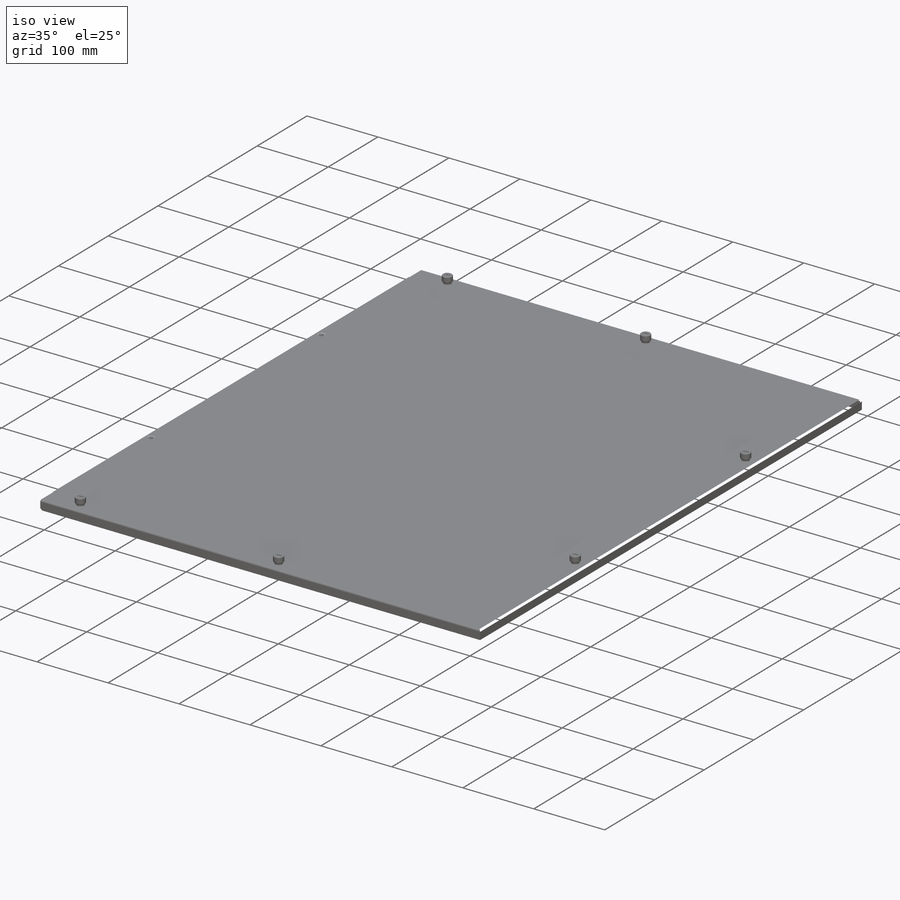
[diagram: iso view]
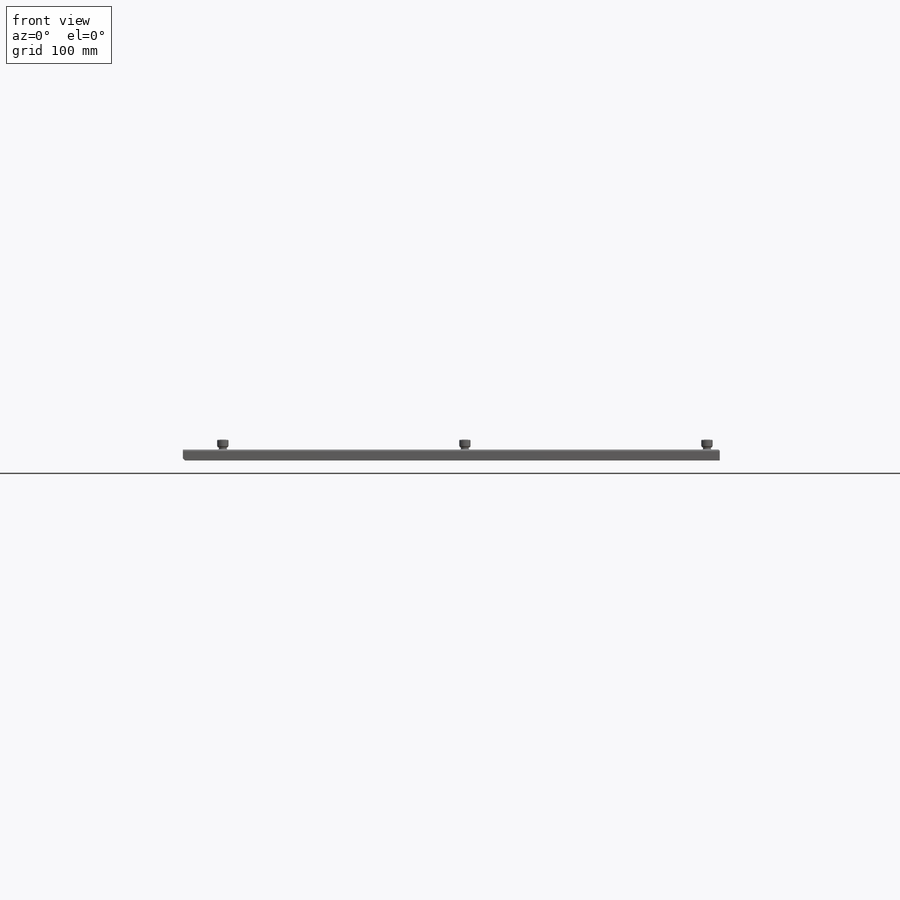
[diagram: front view]
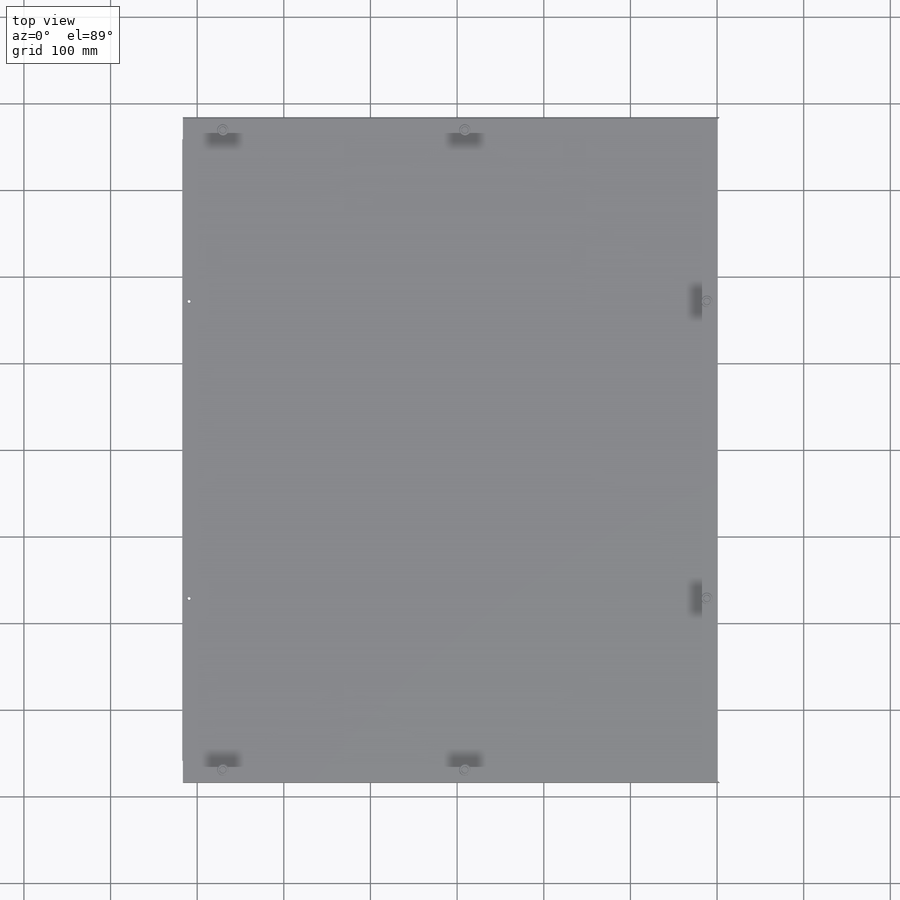
[diagram: top view]
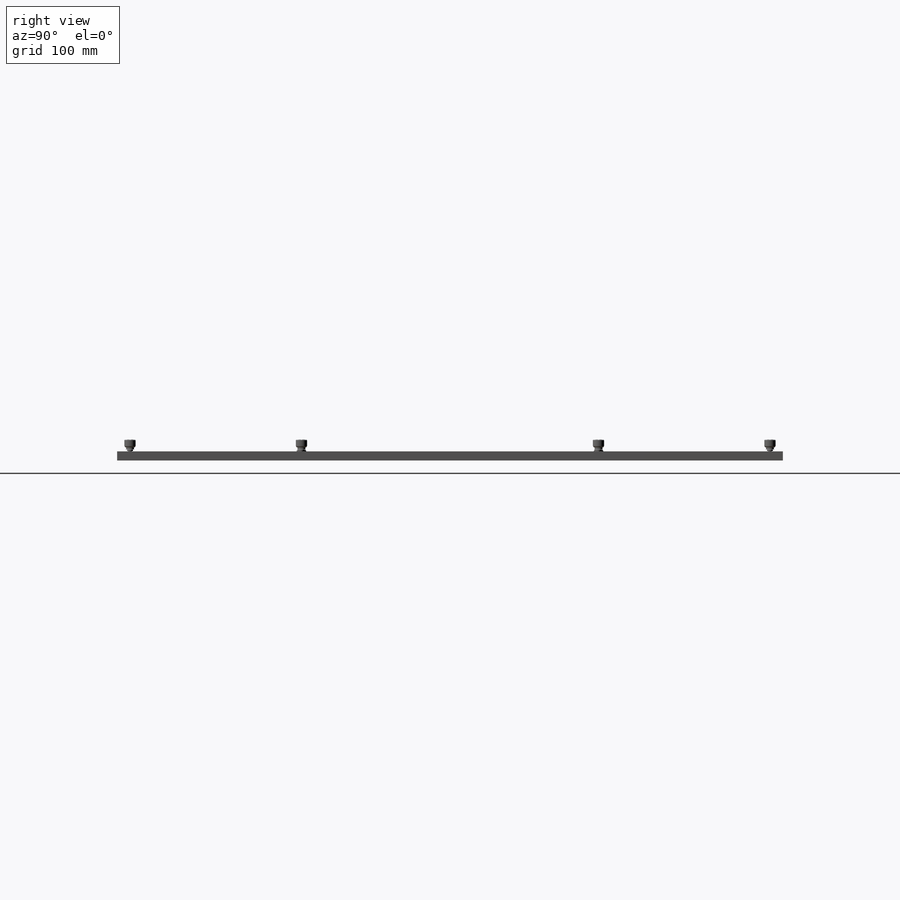
[diagram: right view]
SOLIDWORKS PART (.sldprt)
format: sldprt  version: not decoded by parser v0  size: 871,936 bytes
history: native  units: mm
features: sketch x6, hole x2, move_body x2, material x1, extrude x1, shell x1, fillet x1, cut_extrude x1, chamfer x1 + 5 further entries (+20 scaffold rows collapsed; 10 parser-record rows omitted)
feature tree (51):
  scaffold x20  (default folders/planes/origin — collapsed)
  material  "5052-H32"
  "Origin"  ID=392984584
  sketch  "Sketch1"  dims[c1.D3=~4.916201mm c1.D1=257.81mm c1.D2=1.6002mm c2.D3=6.35mm c2.D4=622.808mm c2.D1=12.7mm c2.D2=3.175mm]
  extrude  "Boss-Extrude1"  Depth=768.35mm
  shell  "Shell1"  Thickness=1.6002mm
  fillet  "Fillet1"  Radius=2.286mm
  hole  "H (0.266) Diameter Hole1"  Diameter=6.7564mm Depth=1.6002mm
  sketch  "Sketch3"  dims[c1.D1=9.398mm c1.D2=20.066mm c1.D3=~321.447412mm c2.D1=9.398mm c2.D3=~312.556779mm c2.D4=29.464mm c2.D2=20.066mm c3.D1=633.222mm c3.D2=29.464mm c3.D3=9.398mm c4.D2=20.066mm c4.D4=~21.014567mm c4.D5=90.0deg c4.D3=9.398mm c5.D4=~624.146639mm c5.D5=623.824mm c5.D6=623.824mm c6.D5=623.824mm c6.D6=623.824mm c7.D5=623.824mm c7.D2=9.398mm c7.D3=20.066mm c7.D4=~161.757015mm c8.D2=9.398mm c8.D4=~153.403804mm c8.D5=20.066mm c8.D6=20.066mm c9.D5=20.066mm c9.D6=20.066mm c10.D5=20.066mm c10.D6=20.066mm c11.D5=20.066mm c11.D6=20.066mm c12.D5=20.066mm c12.D6=20.066mm c12.D3=21.082mm c12.D4=208.4578mm c12.D2=738.632mm c13.D3=342.9mm c13.D5=~208.986708mm c13.D6=14.859mm c13.D4=621.792mm c14.D5=~644.049945mm c14.D1=618.363mm c15.D5=~650.538109mm c15.D1=597.662mm c15.D4=558.8mm c16.D1=597.662mm]
  sketch  "Sketch2"  dims[hole-wizard template sketch: 55 standard entries collapsed; hole parameters kept: c17.Thru Hole Depth=1.6002mm c17.Far C'Sink Dia.=9.1948mm c17.D4=~2.963249mm c17.Far C'Sink Angle=90.0deg]
  "PF11MF-832-0 (Penn Engineering)"
  parser-record x10  (decoder bookkeeping rows leaked as tree rows — omitted from the tree; the rows remain in map.json)
  move_body  "Body-Move/Copy2"
  "Sketch-Pattern1"
  hole  "U (0.368) Diameter Hole1"  Diameter=9.3472mm Depth=1.6002mm
  sketch  "Sketch7"
  sketch  "Sketch6"  dims[hole-wizard template sketch: 59 standard entries collapsed; hole parameters kept: c18.Thru Hole Dia.=9.3472mm c18.Thru Hole Depth=1.6002mm]
  "AC-832-2 (Penn Engineering)"
  move_body  "Body-Move/Copy4"
  "Sketch-Pattern2"
  sketch  "Sketch8"  dims[D1=25.4mm]
  cut_extrude  "Cut-Extrude1"  Depth=3.048mm
  chamfer  "Chamfer1"  Distance=2.54mm Angle=45deg
decode coverage: 12 of 15 modeling features carry decoded parameters; 5 rows unclassified (native names shown)
note: ~ marks probable driven/reference dimensions
note: suppression state not decoded; provenance and decode notes live in map.json
